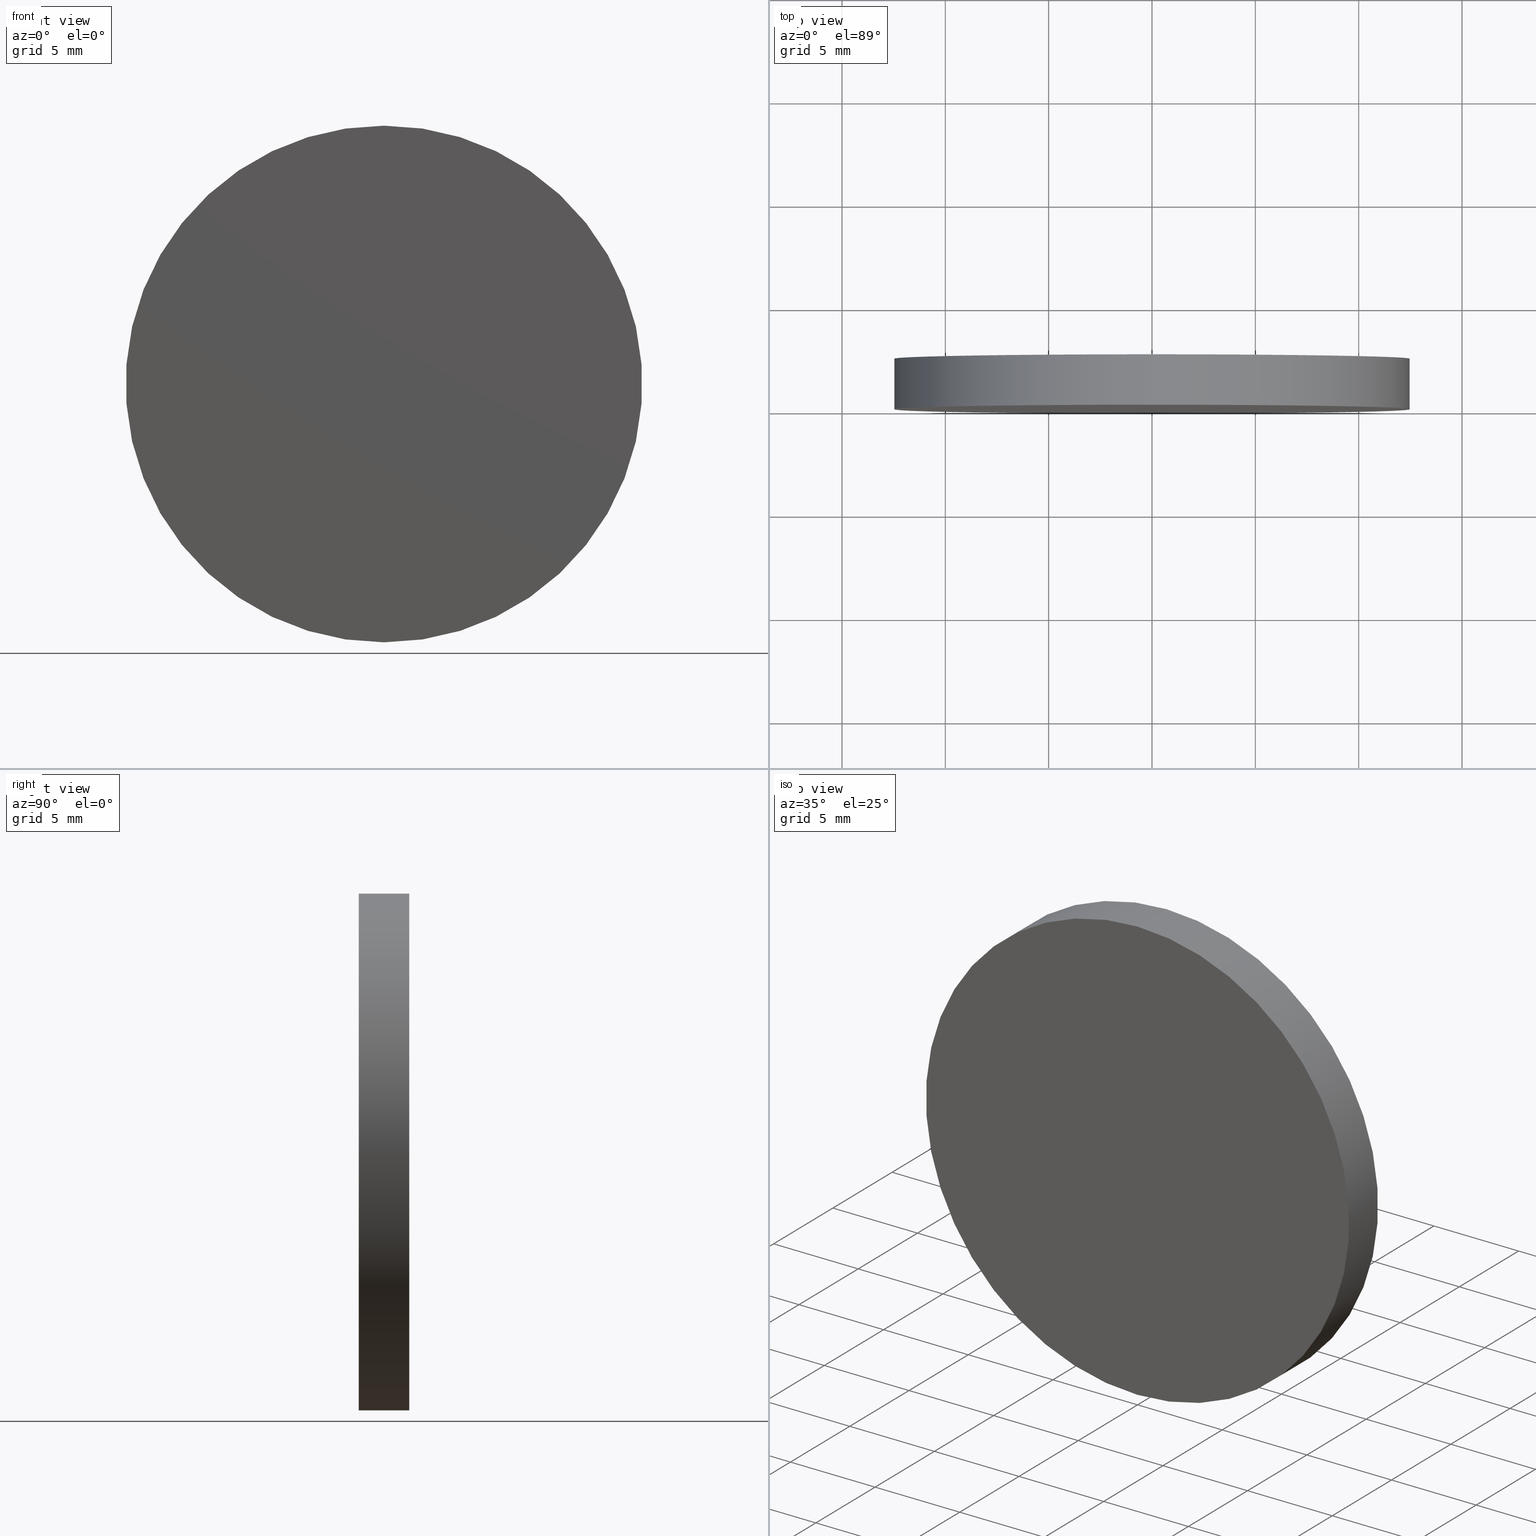
[diagram: canonical four-view strip — front | top / right | iso, engineering-drawing reading convention]
A machine part, canonical four-view strip (front | top / right | iso — engineering-drawing reading convention). The complete STEP part file that produces these views, byte-faithful:
ISO-10303-21;
HEADER;
FILE_DESCRIPTION (( 'STEP AP214' ),
    '1' );
FILE_NAME ('248583.STEP',
    '2019-08-06T02:47:36',
    ( 'user' ),
    ( '΢���й�' ),
    'SwSTEP 2.0',
    'SolidWorks 2016',
    '' );
FILE_SCHEMA (( 'AUTOMOTIVE_DESIGN' ));
ENDSEC;

DATA;
#1 = VECTOR ( 'NONE', #8, 1000.000000000000000 ) ;
#2 = ORIENTED_EDGE ( 'NONE', *, *, #77, .T. ) ;
#3 = AXIS2_PLACEMENT_3D ( 'NONE', #127, #42, #113 ) ;
#4 = FILL_AREA_STYLE ('',( #5 ) ) ;
#5 = FILL_AREA_STYLE_COLOUR ( '', #22 ) ;
#6 = DIRECTION ( 'NONE',  ( 0.0000000000000000000, 0.0000000000000000000, 1.000000000000000000 ) ) ;
#7 = ORIENTED_EDGE ( 'NONE', *, *, #130, .T. ) ;
#8 = DIRECTION ( 'NONE',  ( -0.0000000000000000000, -1.000000000000000000, -0.0000000000000000000 ) ) ;
#9 = LINE ( 'NONE', #54, #38 ) ;
#10 = CYLINDRICAL_SURFACE ( 'NONE', #108, 12.50000000000000000 ) ;
#11 = SURFACE_STYLE_FILL_AREA ( #139 ) ;
#12 = MECHANICAL_DESIGN_GEOMETRIC_PRESENTATION_REPRESENTATION (  '', ( #138 ), #47 ) ;
#13 = CARTESIAN_POINT ( 'NONE',  ( 0.0000000000000000000, 2.439999999999999900, 0.0000000000000000000 ) ) ;
#14 = LINE ( 'NONE', #83, #1 ) ;
#15 = PRODUCT_DEFINITION_CONTEXT ( 'detailed design', #92, 'design' ) ;
#16 = CARTESIAN_POINT ( 'NONE',  ( 1.530808498934191500E-015, 2.439999999999999900, 12.50000000000000000 ) ) ;
#17 = DIRECTION ( 'NONE',  ( -0.0000000000000000000, -1.000000000000000000, -0.0000000000000000000 ) ) ;
#18 = ADVANCED_FACE ( 'NONE', ( #40 ), #58, .T. ) ;
#19 = ORIENTED_EDGE ( 'NONE', *, *, #94, .T. ) ;
#20 = ADVANCED_FACE ( 'NONE', ( #48 ), #46, .T. ) ;
#21 = AXIS2_PLACEMENT_3D ( 'NONE', #69, #66, #137 ) ;
#22 = COLOUR_RGB ( '',1.000000000000000000, 1.000000000000000000, 1.000000000000000000 ) ;
#23 = AXIS2_PLACEMENT_3D ( 'NONE', #56, #34, #115 ) ;
#24 = APPLICATION_PROTOCOL_DEFINITION ( 'draft international standard', 'automotive_design', 1998, #78 ) ;
#25 = CARTESIAN_POINT ( 'NONE',  ( 0.0000000000000000000, 0.0000000000000000000, 0.0000000000000000000 ) ) ;
#26 = CLOSED_SHELL ( 'NONE', ( #20, #120, #18, #118 ) ) ;
#27 = MANIFOLD_SOLID_BREP ( '͹̨-����1', #26 ) ;
#28 = CARTESIAN_POINT ( 'NONE',  ( 0.0000000000000000000, 2.439999999999999900, -12.50000000000000000 ) ) ;
#29 = DIRECTION ( 'NONE',  ( 0.0000000000000000000, 0.0000000000000000000, -1.000000000000000000 ) ) ;
#30 =( GEOMETRIC_REPRESENTATION_CONTEXT ( 3 ) GLOBAL_UNCERTAINTY_ASSIGNED_CONTEXT ( ( #35 ) ) GLOBAL_UNIT_ASSIGNED_CONTEXT ( ( #114, #128, #53 ) ) REPRESENTATION_CONTEXT ( 'NONE', 'WORKASPACE' ) );
#31 = CARTESIAN_POINT ( 'NONE',  ( 0.0000000000000000000, 2.439999999999999900, 0.0000000000000000000 ) ) ;
#32 = EDGE_LOOP ( 'NONE', ( #52, #136 ) ) ;
#33 = AXIS2_PLACEMENT_3D ( 'NONE', #31, #85, #116 ) ;
#34 = DIRECTION ( 'NONE',  ( 0.0000000000000000000, 1.000000000000000000, 0.0000000000000000000 ) ) ;
#35 = UNCERTAINTY_MEASURE_WITH_UNIT (LENGTH_MEASURE( 1.000000000000000100E-005 ), #114, 'distance_accuracy_value', 'NONE');
#36 = PRESENTATION_STYLE_ASSIGNMENT (( #43 ) ) ;
#37 =( NAMED_UNIT ( * ) SI_UNIT ( $, .STERADIAN. ) SOLID_ANGLE_UNIT ( ) );
#38 = VECTOR ( 'NONE', #134, 1000.000000000000000 ) ;
#39 = CARTESIAN_POINT ( 'NONE',  ( 0.0000000000000000000, 2.439999999999999900, 0.0000000000000000000 ) ) ;
#40 = FACE_OUTER_BOUND ( 'NONE', #102, .T. ) ;
#41 = PRESENTATION_LAYER_ASSIGNMENT (  '', '', ( #138 ) ) ;
#42 = DIRECTION ( 'NONE',  ( 0.0000000000000000000, 1.000000000000000000, 0.0000000000000000000 ) ) ;
#43 = SURFACE_STYLE_USAGE ( .BOTH. , #132 ) ;
#44 =( NAMED_UNIT ( * ) SI_UNIT ( $, .STERADIAN. ) SOLID_ANGLE_UNIT ( ) );
#45 = FACE_OUTER_BOUND ( 'NONE', #82, .T. ) ;
#46 = CYLINDRICAL_SURFACE ( 'NONE', #124, 12.50000000000000000 ) ;
#47 =( GEOMETRIC_REPRESENTATION_CONTEXT ( 3 ) GLOBAL_UNCERTAINTY_ASSIGNED_CONTEXT ( ( #125 ) ) GLOBAL_UNIT_ASSIGNED_CONTEXT ( ( #103, #93, #44 ) ) REPRESENTATION_CONTEXT ( 'NONE', 'WORKASPACE' ) );
#48 = FACE_OUTER_BOUND ( 'NONE', #131, .T. ) ;
#49 = ADVANCED_BREP_SHAPE_REPRESENTATION ( '248583', ( #27, #21 ), #74 ) ;
#50 = DIRECTION ( 'NONE',  ( 0.0000000000000000000, -0.0000000000000000000, 1.000000000000000000 ) ) ;
#51 = SURFACE_STYLE_FILL_AREA ( #4 ) ;
#52 = ORIENTED_EDGE ( 'NONE', *, *, #94, .F. ) ;
#53 =( NAMED_UNIT ( * ) SI_UNIT ( $, .STERADIAN. ) SOLID_ANGLE_UNIT ( ) );
#54 = CARTESIAN_POINT ( 'NONE',  ( 1.530808498934191500E-015, 2.439999999999999900, 12.50000000000000000 ) ) ;
#55 = AXIS2_PLACEMENT_3D ( 'NONE', #13, #90, #6 ) ;
#56 = CARTESIAN_POINT ( 'NONE',  ( 0.0000000000000000000, 2.439999999999999900, 0.0000000000000000000 ) ) ;
#57 = VERTEX_POINT ( 'NONE', #16 ) ;
#58 = PLANE ( 'NONE',  #23 ) ;
#59 = PRODUCT ( '248583', '248583', '', ( #72 ) ) ;
#60 = ORIENTED_EDGE ( 'NONE', *, *, #70, .T. ) ;
#61 = UNCERTAINTY_MEASURE_WITH_UNIT (LENGTH_MEASURE( 1.000000000000000100E-005 ), #79, 'distance_accuracy_value', 'NONE');
#62 = CARTESIAN_POINT ( 'NONE',  ( 0.0000000000000000000, 0.0000000000000000000, 0.0000000000000000000 ) ) ;
#63 = DIRECTION ( 'NONE',  ( 0.0000000000000000000, 1.000000000000000000, 0.0000000000000000000 ) ) ;
#64 = ORIENTED_EDGE ( 'NONE', *, *, #98, .F. ) ;
#65 = APPLICATION_PROTOCOL_DEFINITION ( 'draft international standard', 'automotive_design', 1998, #92 ) ;
#66 = DIRECTION ( 'NONE',  ( 0.0000000000000000000, 0.0000000000000000000, 1.000000000000000000 ) ) ;
#67 = SURFACE_SIDE_STYLE ('',( #11 ) ) ;
#68 = AXIS2_PLACEMENT_3D ( 'NONE', #25, #63, #50 ) ;
#69 = CARTESIAN_POINT ( 'NONE',  ( 0.0000000000000000000, 0.0000000000000000000, 0.0000000000000000000 ) ) ;
#70 = EDGE_CURVE ( 'NONE', #75, #106, #14, .T. ) ;
#71 = CIRCLE ( 'NONE', #33, 12.50000000000000000 ) ;
#72 = PRODUCT_CONTEXT ( 'NONE', #78, 'mechanical' ) ;
#73 = FILL_AREA_STYLE_COLOUR ( '', #129 ) ;
#74 =( GEOMETRIC_REPRESENTATION_CONTEXT ( 3 ) GLOBAL_UNCERTAINTY_ASSIGNED_CONTEXT ( ( #61 ) ) GLOBAL_UNIT_ASSIGNED_CONTEXT ( ( #79, #99, #37 ) ) REPRESENTATION_CONTEXT ( 'NONE', 'WORKASPACE' ) );
#75 = VERTEX_POINT ( 'NONE', #28 ) ;
#76 = ORIENTED_EDGE ( 'NONE', *, *, #107, .T. ) ;
#77 = EDGE_CURVE ( 'NONE', #75, #57, #71, .T. ) ;
#78 = APPLICATION_CONTEXT ( 'automotive_design' ) ;
#79 =( LENGTH_UNIT ( ) NAMED_UNIT ( * ) SI_UNIT ( .MILLI., .METRE. ) );
#80 = MECHANICAL_DESIGN_GEOMETRIC_PRESENTATION_REPRESENTATION (  '', ( #95 ), #30 ) ;
#81 = SHAPE_DEFINITION_REPRESENTATION ( #96, #49 ) ;
#82 = EDGE_LOOP ( 'NONE', ( #119, #91, #60, #19 ) ) ;
#83 = CARTESIAN_POINT ( 'NONE',  ( 0.0000000000000000000, 2.439999999999999900, -12.50000000000000000 ) ) ;
#84 = CARTESIAN_POINT ( 'NONE',  ( 0.0000000000000000000, 0.0000000000000000000, -12.50000000000000000 ) ) ;
#85 = DIRECTION ( 'NONE',  ( 0.0000000000000000000, 1.000000000000000000, 0.0000000000000000000 ) ) ;
#86 = CIRCLE ( 'NONE', #55, 12.50000000000000000 ) ;
#87 = PRESENTATION_LAYER_ASSIGNMENT (  '', '', ( #95 ) ) ;
#88 = CARTESIAN_POINT ( 'NONE',  ( 1.530808498934191500E-015, 0.0000000000000000000, 12.50000000000000000 ) ) ;
#89 = FACE_OUTER_BOUND ( 'NONE', #32, .T. ) ;
#90 = DIRECTION ( 'NONE',  ( 0.0000000000000000000, 1.000000000000000000, 0.0000000000000000000 ) ) ;
#91 = ORIENTED_EDGE ( 'NONE', *, *, #77, .F. ) ;
#92 = APPLICATION_CONTEXT ( 'automotive_design' ) ;
#93 =( NAMED_UNIT ( * ) PLANE_ANGLE_UNIT ( ) SI_UNIT ( $, .RADIAN. ) );
#94 = EDGE_CURVE ( 'NONE', #106, #140, #117, .T. ) ;
#95 = STYLED_ITEM ( 'NONE', ( #36 ), #49 ) ;
#96 = PRODUCT_DEFINITION_SHAPE ( 'NONE', 'NONE',  #110 ) ;
#97 = PRODUCT_RELATED_PRODUCT_CATEGORY ( 'part', '', ( #59 ) ) ;
#98 = EDGE_CURVE ( 'NONE', #57, #75, #86, .T. ) ;
#99 =( NAMED_UNIT ( * ) PLANE_ANGLE_UNIT ( ) SI_UNIT ( $, .RADIAN. ) );
#100 = PLANE ( 'NONE',  #68 ) ;
#101 = AXIS2_PLACEMENT_3D ( 'NONE', #62, #133, #111 ) ;
#102 = EDGE_LOOP ( 'NONE', ( #2, #109 ) ) ;
#103 =( LENGTH_UNIT ( ) NAMED_UNIT ( * ) SI_UNIT ( .MILLI., .METRE. ) );
#104 = SURFACE_STYLE_USAGE ( .BOTH. , #67 ) ;
#105 = CARTESIAN_POINT ( 'NONE',  ( 0.0000000000000000000, 2.439999999999999900, 0.0000000000000000000 ) ) ;
#106 = VERTEX_POINT ( 'NONE', #84 ) ;
#107 = EDGE_CURVE ( 'NONE', #57, #140, #9, .T. ) ;
#108 = AXIS2_PLACEMENT_3D ( 'NONE', #39, #112, #126 ) ;
#109 = ORIENTED_EDGE ( 'NONE', *, *, #98, .T. ) ;
#110 = PRODUCT_DEFINITION ( 'δ֪', '', #121, #15 ) ;
#111 = DIRECTION ( 'NONE',  ( 0.0000000000000000000, 0.0000000000000000000, 1.000000000000000000 ) ) ;
#112 = DIRECTION ( 'NONE',  ( -0.0000000000000000000, -1.000000000000000000, -0.0000000000000000000 ) ) ;
#113 = DIRECTION ( 'NONE',  ( 0.0000000000000000000, 0.0000000000000000000, 1.000000000000000000 ) ) ;
#114 =( LENGTH_UNIT ( ) NAMED_UNIT ( * ) SI_UNIT ( .MILLI., .METRE. ) );
#115 = DIRECTION ( 'NONE',  ( 0.0000000000000000000, -0.0000000000000000000, 1.000000000000000000 ) ) ;
#116 = DIRECTION ( 'NONE',  ( 0.0000000000000000000, 0.0000000000000000000, 1.000000000000000000 ) ) ;
#117 = CIRCLE ( 'NONE', #3, 12.50000000000000000 ) ;
#118 = ADVANCED_FACE ( 'NONE', ( #89 ), #100, .F. ) ;
#119 = ORIENTED_EDGE ( 'NONE', *, *, #107, .F. ) ;
#120 = ADVANCED_FACE ( 'NONE', ( #45 ), #10, .T. ) ;
#121 = PRODUCT_DEFINITION_FORMATION_WITH_SPECIFIED_SOURCE ( '�κ�', '', #59, .NOT_KNOWN. ) ;
#122 = CIRCLE ( 'NONE', #101, 12.50000000000000000 ) ;
#123 = ORIENTED_EDGE ( 'NONE', *, *, #70, .F. ) ;
#124 = AXIS2_PLACEMENT_3D ( 'NONE', #105, #17, #29 ) ;
#125 = UNCERTAINTY_MEASURE_WITH_UNIT (LENGTH_MEASURE( 1.000000000000000100E-005 ), #103, 'distance_accuracy_value', 'NONE');
#126 = DIRECTION ( 'NONE',  ( 0.0000000000000000000, 0.0000000000000000000, -1.000000000000000000 ) ) ;
#127 = CARTESIAN_POINT ( 'NONE',  ( 0.0000000000000000000, 0.0000000000000000000, 0.0000000000000000000 ) ) ;
#128 =( NAMED_UNIT ( * ) PLANE_ANGLE_UNIT ( ) SI_UNIT ( $, .RADIAN. ) );
#129 = COLOUR_RGB ( '',1.000000000000000000, 1.000000000000000000, 1.000000000000000000 ) ;
#130 = EDGE_CURVE ( 'NONE', #140, #106, #122, .T. ) ;
#131 = EDGE_LOOP ( 'NONE', ( #64, #76, #7, #123 ) ) ;
#132 = SURFACE_SIDE_STYLE ('',( #51 ) ) ;
#133 = DIRECTION ( 'NONE',  ( 0.0000000000000000000, 1.000000000000000000, 0.0000000000000000000 ) ) ;
#134 = DIRECTION ( 'NONE',  ( -0.0000000000000000000, -1.000000000000000000, -0.0000000000000000000 ) ) ;
#135 = PRESENTATION_STYLE_ASSIGNMENT (( #104 ) ) ;
#136 = ORIENTED_EDGE ( 'NONE', *, *, #130, .F. ) ;
#137 = DIRECTION ( 'NONE',  ( 1.000000000000000000, 0.0000000000000000000, 0.0000000000000000000 ) ) ;
#138 = STYLED_ITEM ( 'NONE', ( #135 ), #27 ) ;
#139 = FILL_AREA_STYLE ('',( #73 ) ) ;
#140 = VERTEX_POINT ( 'NONE', #88 ) ;
ENDSEC;
END-ISO-10303-21;
